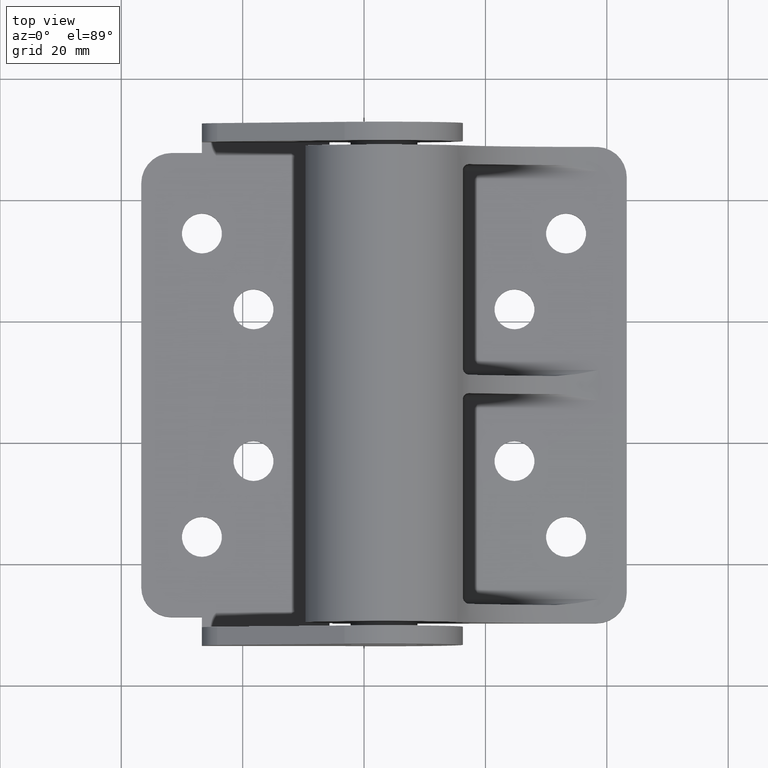
[diagram: clean part render]
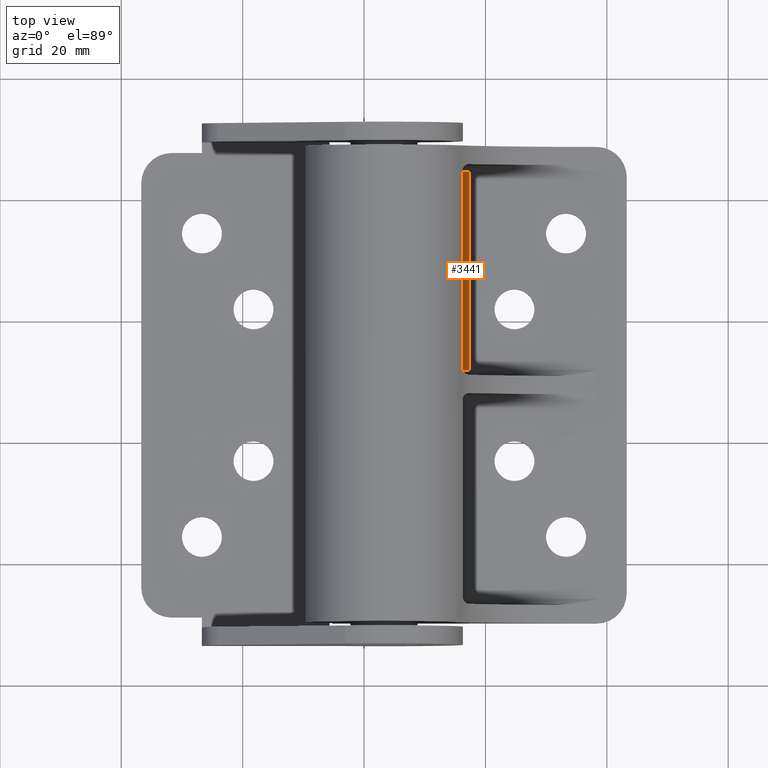
[diagram: same view with one face highlighted and labeled with its STEP entity id]
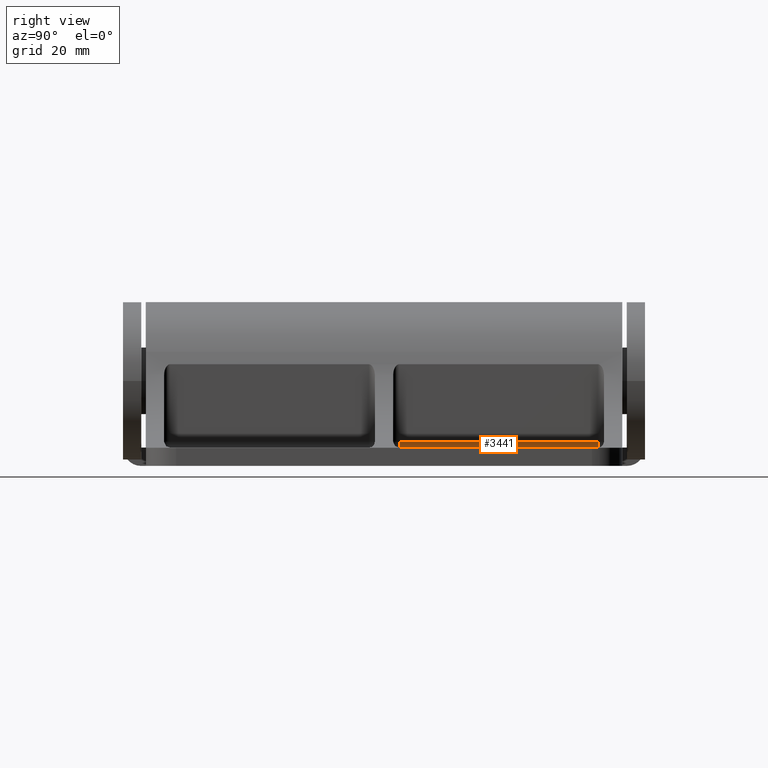
[diagram: same view with one face highlighted and labeled with its STEP entity id]
A machine part, top view. The second image highlights one B-rep face of the part: STEP entity #3441.
A second angle (right view) of the same face is appended — the face is thin or edge-on in the first view.
In plain terms, the highlighted cylindrical surface (edge-blend (fillet) strip) has radius 1 mm, axis along (0, 1, 0).
Its self-contained STEP definition (entity closure, byte-faithful):
#283 = EDGE_LOOP ( 'NONE', ( #1602, #302, #1818, #1512 ) ) ;
#302 = ORIENTED_EDGE ( 'NONE', *, *, #1403, .F. ) ;
#581 = CARTESIAN_POINT ( 'NONE',  ( 14.00000000000000000, 10.00000000000000000, -917.7500000000000000 ) ) ;
#710 = VERTEX_POINT ( 'NONE', #3517 ) ;
#807 = LINE ( 'NONE', #3146, #3706 ) ;
#811 = AXIS2_PLACEMENT_3D ( 'NONE', #581, #3282, #3567 ) ;
#870 = CYLINDRICAL_SURFACE ( 'NONE', #811, 0.9999999999999991100 ) ;
#1102 = CIRCLE ( 'NONE', #3002, 0.9999999999999991100 ) ;
#1403 = EDGE_CURVE ( 'NONE', #710, #1532, #807, .T. ) ;
#1484 = DIRECTION ( 'NONE',  ( 0.0000000000000000000, 0.0000000000000000000, -1.000000000000000000 ) ) ;
#1512 = ORIENTED_EDGE ( 'NONE', *, *, #3826, .F. ) ;
#1532 = VERTEX_POINT ( 'NONE', #2085 ) ;
#1580 = DIRECTION ( 'NONE',  ( 0.0000000000000000000, 0.0000000000000000000, -1.000000000000000000 ) ) ;
#1602 = ORIENTED_EDGE ( 'NONE', *, *, #3647, .F. ) ;
#1620 = EDGE_CURVE ( 'NONE', #710, #3605, #2053, .T. ) ;
#1740 = DIRECTION ( 'NONE',  ( -1.000000000000000000, 0.0000000000000000000, 0.0000000000000000000 ) ) ;
#1767 = CARTESIAN_POINT ( 'NONE',  ( 14.00000000000000000, 10.00000000000000000, 45.50000000000000000 ) ) ;
#1818 = ORIENTED_EDGE ( 'NONE', *, *, #1620, .T. ) ;
#2049 = DIRECTION ( 'NONE',  ( 0.0000000000000000000, 0.0000000000000000000, -1.000000000000000000 ) ) ;
#2053 = CIRCLE ( 'NONE', #3565, 0.9999999999999991100 ) ;
#2085 = CARTESIAN_POINT ( 'NONE',  ( 13.00000000000000000, 10.00000000000000000, 78.25000000000000000 ) ) ;
#2332 = CARTESIAN_POINT ( 'NONE',  ( 14.00000000000000000, 11.00000000000000000, 45.50000000000000000 ) ) ;
#2458 = FACE_OUTER_BOUND ( 'NONE', #283, .T. ) ;
#2832 = VECTOR ( 'NONE', #2049, 1000.000000000000000 ) ;
#2867 = VERTEX_POINT ( 'NONE', #3134 ) ;
#2869 = DIRECTION ( 'NONE',  ( -0.0000000000000000000, -0.0000000000000000000, 1.000000000000000000 ) ) ;
#3002 = AXIS2_PLACEMENT_3D ( 'NONE', #3387, #1580, #3671 ) ;
#3134 = CARTESIAN_POINT ( 'NONE',  ( 14.00000000000000000, 11.00000000000000000, 78.25000000000000000 ) ) ;
#3146 = CARTESIAN_POINT ( 'NONE',  ( 13.00000000000000000, 10.00000000000000000, 78.25000000000000000 ) ) ;
#3282 = DIRECTION ( 'NONE',  ( 0.0000000000000000000, 0.0000000000000000000, 1.000000000000000000 ) ) ;
#3387 = CARTESIAN_POINT ( 'NONE',  ( 14.00000000000000000, 10.00000000000000000, 78.25000000000000000 ) ) ;
#3441 = ADVANCED_FACE ( 'NONE', ( #2458 ), #870, .F. ) ;
#3517 = CARTESIAN_POINT ( 'NONE',  ( 13.00000000000000000, 10.00000000000000000, 45.50000000000000000 ) ) ;
#3565 = AXIS2_PLACEMENT_3D ( 'NONE', #1767, #1484, #1740 ) ;
#3567 = DIRECTION ( 'NONE',  ( 1.000000000000000000, 0.0000000000000000000, 0.0000000000000000000 ) ) ;
#3605 = VERTEX_POINT ( 'NONE', #3632 ) ;
#3626 = LINE ( 'NONE', #2332, #2832 ) ;
#3632 = CARTESIAN_POINT ( 'NONE',  ( 14.00000000000000000, 11.00000000000000000, 45.50000000000000000 ) ) ;
#3647 = EDGE_CURVE ( 'NONE', #1532, #2867, #1102, .T. ) ;
#3671 = DIRECTION ( 'NONE',  ( -1.000000000000000000, 0.0000000000000000000, 0.0000000000000000000 ) ) ;
#3706 = VECTOR ( 'NONE', #2869, 1000.000000000000000 ) ;
#3826 = EDGE_CURVE ( 'NONE', #2867, #3605, #3626, .T. ) ;